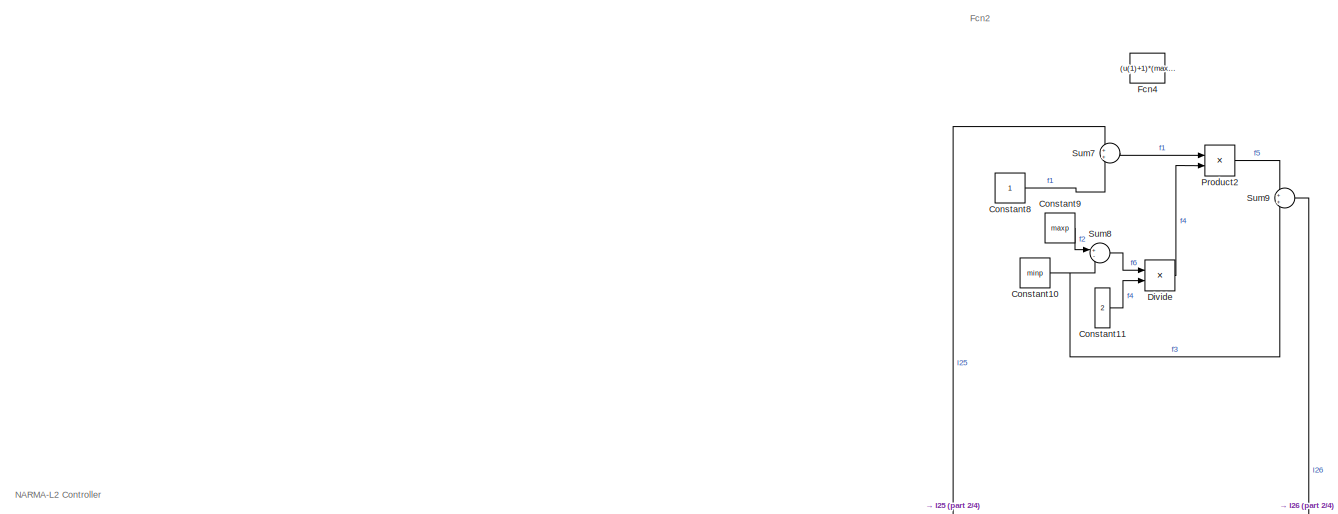
[diagram: root canvas - part 1/4, top left region]
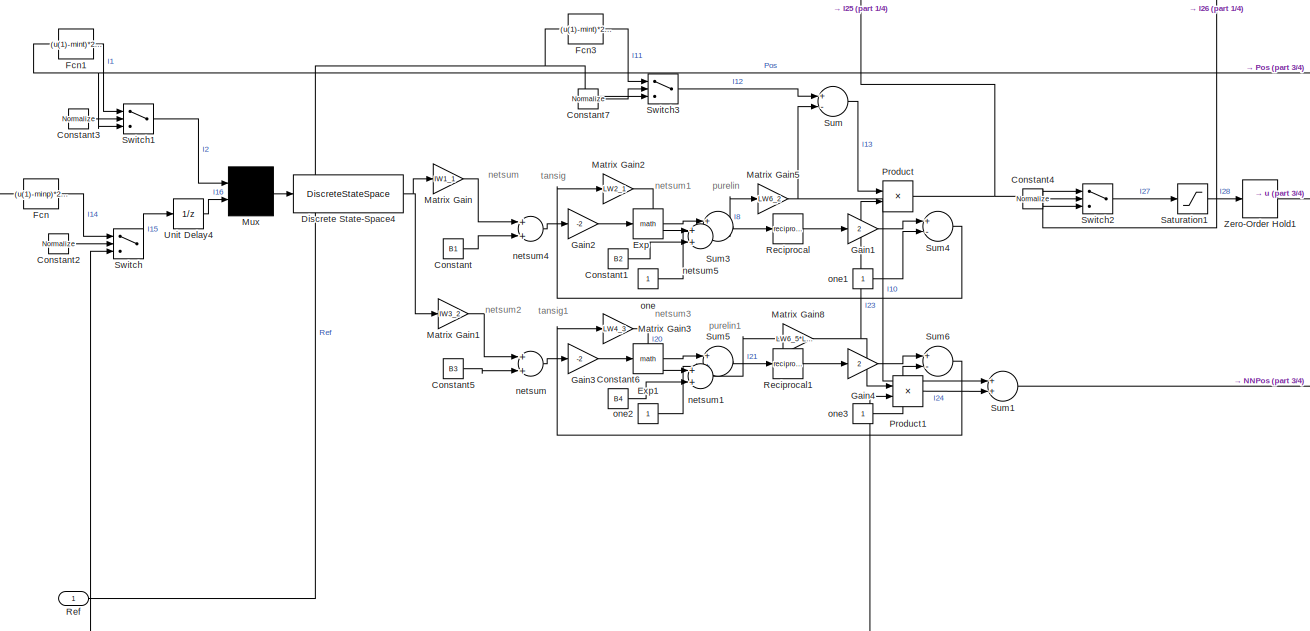
[diagram: root canvas - part 2/4, middle left region]
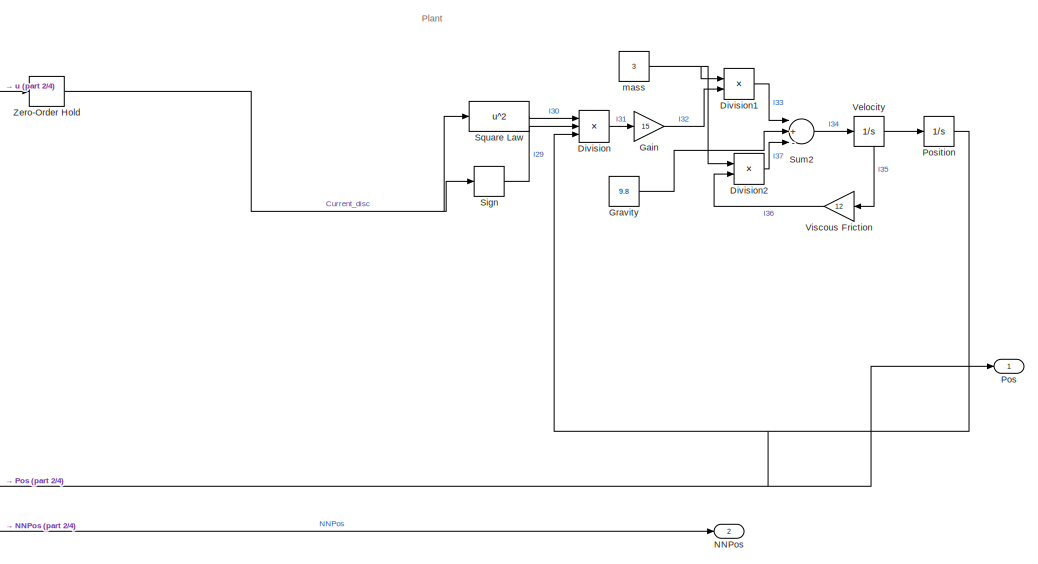
[diagram: root canvas - part 3/4, bottom right region]
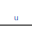
[diagram: root canvas - part 4/4, bottom left region]
MODEL slx_2d66163ca0de
KIND model
CONFIG AbsTol = 1e-6
CONFIG EnableMultiTasking = off
CONFIG FixedStep = auto
CONFIG MaxStep = auto
CONFIG MinStep = auto
CONFIG RelTol = 1e-3
CONFIG SampleTimeConstraint = Unconstrained
CONFIG Solver = ode45
CONFIG SolverName = ode45
CONFIG StartTime = 0.0
CONFIG StopTime = tspan(end)
WORKSPACE source: external: MAT-File  (data not in archive)
BLOCK [Constant] Constant
  Value = B1
BLOCK [Constant] Constant1
  Value = B2
BLOCK [Constant] Constant10
  Value = minp
BLOCK [Constant] Constant11
  Value = 2
BLOCK [Constant] Constant2
  Value = Normalize
BLOCK [Constant] Constant3
  Value = Normalize
BLOCK [Constant] Constant4
  Value = Normalize
BLOCK [Constant] Constant5
  Value = B3
BLOCK [Constant] Constant6
  Value = B4
BLOCK [Constant] Constant7
  Value = Normalize
BLOCK [Constant] Constant8
BLOCK [Constant] Constant9
  Value = maxp
BLOCK [DiscreteStateSpace] Discrete State-Space4
  A = blkdiag([zeros(1,Nj-1);eye(Nj-2,Nj-2) zeros(Nj-2,1)],[zeros(1,Ni-1);eye(Ni-2,Ni-2) zeros(Ni-2,1)])
  B = blkdiag(eye(Nj-1,1),eye(Ni-1,1))
  C = blkdiag([zeros(1,Nj-1);eye(Nj-1,Nj-1)],[zeros(eye(double(Ni>1)),Ni-1);eye(Ni-2,Ni-1)])
  D = blkdiag([1;zeros(Nj-1,1)],[eye(double(Ni>1));zeros(Ni-2,1)])
  SampleTime = Ts
BLOCK [Product] Divide
  InputSameDT = off
  Inputs = */
  OutDataTypeStr = Inherit: Inherit via internal rule
  Ports = [2, 1]
  RndMeth = Floor
  SaturateOnIntegerOverflow = off
BLOCK [Product] Division
  Inputs = **/
  Ports = [3, 1]
  RndMeth = Floor
BLOCK [Product] Division1
  Inputs = /*
  Ports = [2, 1]
  RndMeth = Floor
BLOCK [Product] Division2
  Inputs = /*
  Ports = [2, 1]
  RndMeth = Floor
BLOCK [Math] Exp
  Ports = [1, 1]
BLOCK [Math] Exp1
  Ports = [1, 1]
BLOCK [Fcn] Fcn
  Expr = (u(1)-minp)*2/(maxp-minp) - 1
BLOCK [Fcn] Fcn1
  Expr = (u(1)-mint)*2/(maxt-mint) - 1
BLOCK [Fcn] Fcn3
  Expr = (u(1)-mint)*2/(maxt-mint) - 1
BLOCK [Fcn] Fcn4
  Commented = on
  Expr = (u(1)+1)*(maxp-minp)/2 +minp
BLOCK [Gain] Gain
  Gain = 15
BLOCK [Gain] Gain1
  Gain = 2
BLOCK [Gain] Gain2
  Gain = -2
BLOCK [Gain] Gain3
  Gain = -2
BLOCK [Gain] Gain4
  Gain = 2
BLOCK [Constant] Gravity
  Value = 9.8
BLOCK [Gain] Matrix Gain
  Gain = IW1_1
  Multiplication = Matrix(K*u)
BLOCK [Gain] Matrix Gain1
  Gain = IW3_2
  Multiplication = Matrix(K*u)
BLOCK [Gain] Matrix Gain2
  Gain = LW2_1
  Multiplication = Matrix(K*u)
BLOCK [Gain] Matrix Gain3
  Gain = LW4_3
  Multiplication = Matrix(K*u)
BLOCK [Gain] Matrix Gain5
  Gain = LW6_2
  Multiplication = Matrix(K*u)
BLOCK [Gain] Matrix Gain8
  Gain = LW6_5*LW5_4*IW5_3
  Multiplication = Matrix(K*u)
BLOCK [Mux] Mux
  DisplayOption = signals
  Inputs = 2
  Ports = [2, 1]
BLOCK [Outport] NNPos
  IconDisplay = Port number
  Port = 2
BLOCK [Outport] Pos
  IconDisplay = Port number
BLOCK [Integrator] Position
  InitialCondition = 0.5
  Ports = [1, 1]
  ZeroCross = off
BLOCK [Product] Product
  Inputs = */
  Ports = [2, 1]
  RndMeth = Floor
BLOCK [Product] Product1
  Ports = [2, 1]
  RndMeth = Floor
BLOCK [Product] Product2
  InputSameDT = off
  OutDataTypeStr = Inherit: Inherit via internal rule
  Ports = [2, 1]
  RndMeth = Floor
  SaturateOnIntegerOverflow = off
BLOCK [Math] Reciprocal
  Operator = reciprocal
  Ports = [1, 1]
BLOCK [Math] Reciprocal1
  Operator = reciprocal
  Ports = [1, 1]
BLOCK [Inport] Ref
  IconDisplay = Port number
BLOCK [Saturate] Saturation1
  InputPortMap = u0
  LowerLimit = min_i
  Ports = [1, 1]
  UpperLimit = max_i
  ZeroCross = off
BLOCK [Signum] Sign
  ZeroCross = off
BLOCK [Fcn] Square Law
  Expr = u^2
BLOCK [Sum] Sum
  Inputs = +-
  Ports = [2, 1]
BLOCK [Sum] Sum1
  Ports = [2, 1]
BLOCK [Sum] Sum2
  Inputs = |+--
  Ports = [3, 1]
BLOCK [Sum] Sum3
  Ports = [2, 1]
BLOCK [Sum] Sum4
  Inputs = +-
  Ports = [2, 1]
BLOCK [Sum] Sum5
  Ports = [2, 1]
BLOCK [Sum] Sum6
  Inputs = +-
  Ports = [2, 1]
BLOCK [Sum] Sum7
  IconShape = round
  InputSameDT = off
  OutDataTypeStr = Inherit: Inherit via internal rule
  Ports = [2, 1]
  SaturateOnIntegerOverflow = off
BLOCK [Sum] Sum8
  IconShape = round
  InputSameDT = off
  Inputs = +-
  OutDataTypeStr = Inherit: Inherit via internal rule
  Ports = [2, 1]
  SaturateOnIntegerOverflow = off
BLOCK [Sum] Sum9
  IconShape = round
  InputSameDT = off
  OutDataTypeStr = Inherit: Inherit via internal rule
  Ports = [2, 1]
  SaturateOnIntegerOverflow = off
BLOCK [Switch] Switch
  Threshold = 0.5
  ZeroCross = off
BLOCK [Switch] Switch1
  Threshold = 0.5
  ZeroCross = off
BLOCK [Switch] Switch2
  Threshold = 0.5
  ZeroCross = off
BLOCK [Switch] Switch3
  Threshold = 0.5
  ZeroCross = off
BLOCK [UnitDelay] Unit Delay4
  SampleTime = Ts
BLOCK [Integrator] Velocity
  Ports = [1, 1]
  ZeroCross = off
BLOCK [Gain] Viscous Friction
  Gain = 12
BLOCK [ZeroOrderHold] Zero-Order Hold
  SampleTime = u_ts
BLOCK [ZeroOrderHold] Zero-Order Hold1
  SampleTime = Ts
BLOCK [Constant] mass
  Value = 3
BLOCK [Sum] netsum
  Inputs = 2
  Ports = [2, 1]
BLOCK [Sum] netsum1
  Inputs = 2
  Ports = [2, 1]
BLOCK [Sum] netsum4
  Inputs = 2
  Ports = [2, 1]
BLOCK [Sum] netsum5
  Inputs = 2
  Ports = [2, 1]
BLOCK [Constant] one
BLOCK [Constant] one1
BLOCK [Constant] one2
BLOCK [Constant] one3
ANNOTATION (root): Fcn2
ANNOTATION (root): NARMA-L2 Controller
ANNOTATION (root): Plant
ANNOTATION (root): netsum
ANNOTATION (root): netsum1
ANNOTATION (root): netsum2
ANNOTATION (root): netsum3
ANNOTATION (root): purelin
ANNOTATION (root): purelin1
ANNOTATION (root): tansig
ANNOTATION (root): tansig1
NET Constant10:1 -> Sum8:2, Sum9:2
LINE Constant11:1 -> Divide:2
LINE Constant1:1 -> netsum5:2
LINE Constant2:1 -> Switch:2
LINE Constant3:1 -> Switch1:2
LINE Constant4:1 -> Switch2:2
LINE Constant5:1 -> netsum:2
LINE Constant6:1 -> netsum1:2
LINE Constant7:1 -> Switch3:2
LINE Constant8:1 -> Sum7:2
LINE Constant9:1 -> Sum8:1
LINE Constant:1 -> netsum4:2
NET Discrete State-Space4:1 -> Matrix Gain1:1, Matrix Gain:1
LINE Divide:1 -> Product2:2
LINE Division1:1 -> Sum2:1
LINE Division2:1 -> Sum2:3
LINE Division:1 -> Gain:1
LINE Exp1:1 -> Sum5:1
LINE Exp:1 -> Sum3:1
LINE Fcn1:1 -> Switch1:1
LINE Fcn3:1 -> Switch3:1
LINE Fcn:1 -> Switch:1
LINE Gain1:1 -> Sum4:1
LINE Gain2:1 -> Exp:1
LINE Gain3:1 -> Exp1:1
LINE Gain4:1 -> Sum6:1
LINE Gain:1 -> Division1:2
LINE Gravity:1 -> Sum2:2
LINE Matrix Gain1:1 -> netsum:1
LINE Matrix Gain2:1 -> netsum5:1
LINE Matrix Gain3:1 -> netsum1:1
NET Matrix Gain5:1 -> Sum1:1, Sum:2
NET Matrix Gain8:1 -> Product1:1, Product:2
LINE Matrix Gain:1 -> netsum4:1
LINE Mux:1 -> Discrete State-Space4:1
NET Position:1 -> Division:3, Fcn1:1, Pos:1, Switch1:3
LINE Product1:1 -> Sum1:2
LINE Product2:1 -> Sum9:1
NET Product:1 -> Sum7:1, Switch2:3
LINE Reciprocal1:1 -> Gain4:1
LINE Reciprocal:1 -> Gain1:1
NET Ref:1 -> Fcn3:1, Switch3:3
LINE Saturation1:1 -> Zero-Order Hold1:1
LINE Sign:1 -> Division:2
LINE Square Law:1 -> Division:1
LINE Sum1:1 -> NNPos:1
LINE Sum2:1 -> Velocity:1
LINE Sum3:1 -> Reciprocal:1
LINE Sum4:1 -> Matrix Gain2:1
LINE Sum5:1 -> Reciprocal1:1
LINE Sum6:1 -> Matrix Gain3:1
LINE Sum7:1 -> Product2:1
LINE Sum8:1 -> Divide:1
LINE Sum9:1 -> Switch2:1
LINE Sum:1 -> Product:1
LINE Switch1:1 -> Mux:1
LINE Switch2:1 -> Saturation1:1
LINE Switch3:1 -> Sum:1
LINE Switch:1 -> Unit Delay4:1
LINE Unit Delay4:1 -> Mux:2
NET Velocity:1 -> Position:1, Viscous Friction:1
LINE Viscous Friction:1 -> Division2:2
NET Zero-Order Hold1:1 -> Fcn:1, Product1:2, Switch:3, Zero-Order Hold:1
NET Zero-Order Hold:1 -> Sign:1, Square Law:1
NET mass:1 -> Division1:1, Division2:1
LINE netsum1:1 -> Matrix Gain8:1
LINE netsum4:1 -> Gain2:1
LINE netsum5:1 -> Matrix Gain5:1
LINE netsum:1 -> Gain3:1
LINE one1:1 -> Sum4:2
LINE one2:1 -> Sum5:2
LINE one3:1 -> Sum6:2
LINE one:1 -> Sum3:2
note: NET lines group one-source signal fan-out (src -> all destinations, sorted); 1:1 wires keep LINE
